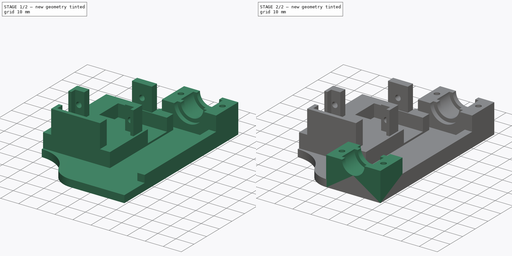
[diagram: build sequence overview — one tinted view per stage of 2, left to right]
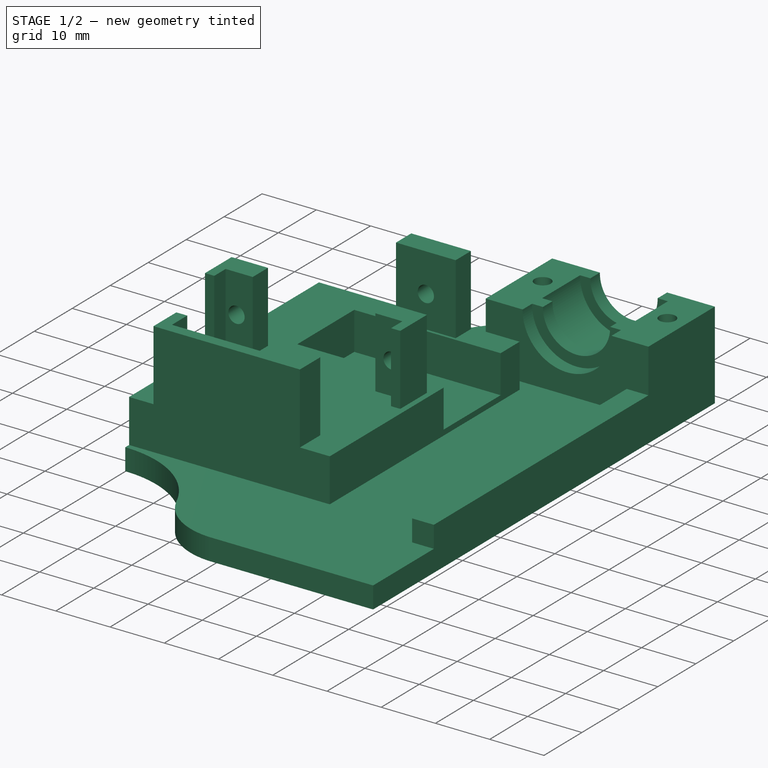
[diagram: stage 1 of 2 — iso view after this stage's code; geometry added in this stage tinted green]
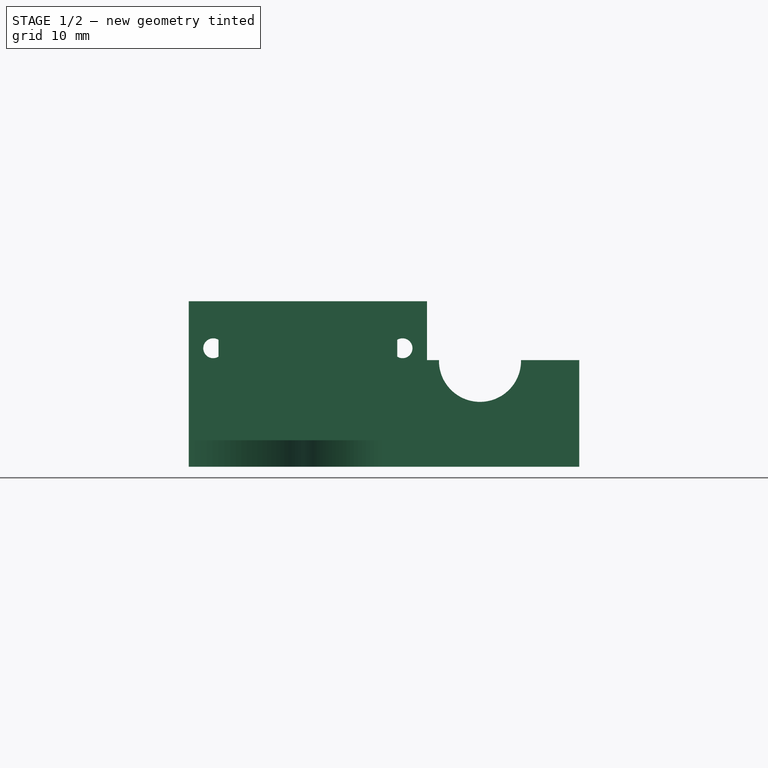
[diagram: stage 1 of 2 — front view after this stage's code; geometry added in this stage tinted green]
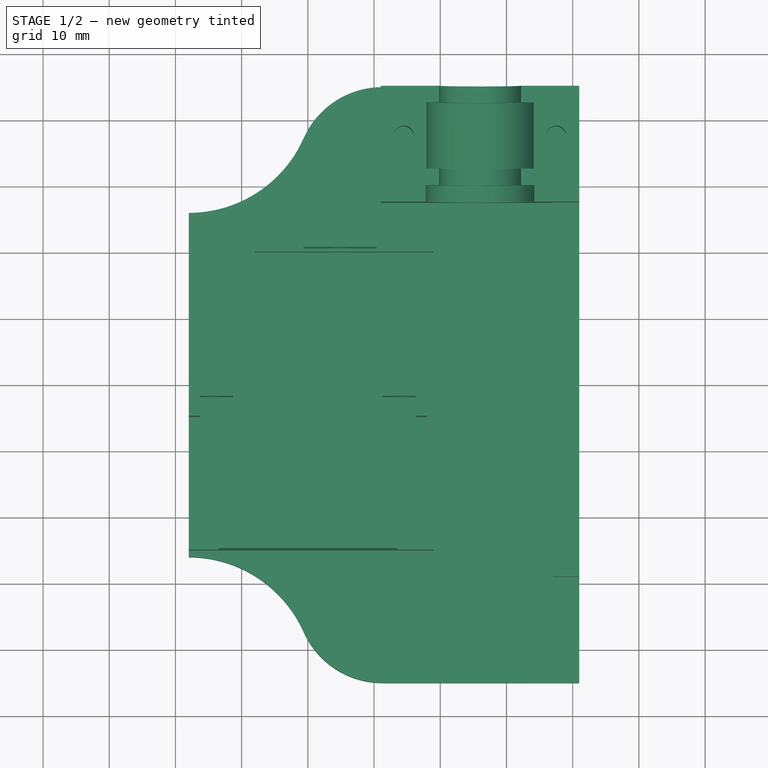
[diagram: stage 1 of 2 — top view after this stage's code; geometry added in this stage tinted green]
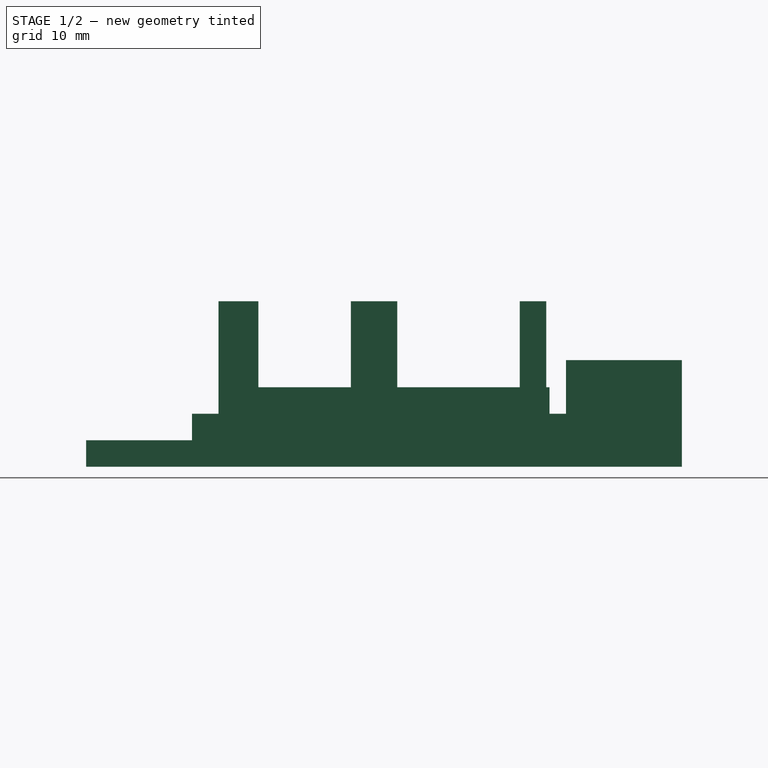
[diagram: stage 1 of 2 — right view after this stage's code; geometry added in this stage tinted green]
FCSTD DOCUMENT  (FreeCAD 0.16R6703 (Git))
Label: Full Platform v2
License: FreeArt
LicenseURL: http://artlibre.org/licence/lal
objects: Part::Feature×3, Part::Fuse×3, Sketcher::SketchObject×1, PartDesign::Pad×1
note: 9 computed .brp shape members not serialized (recipe doc carries the construction recipe); baked Part::Feature solids carry a one-line shape summary decoded from their .brp

FEATURE [Part::Feature] Pocket003001  label="Pocket004"
  Placement = pos=(26,37.5,0) rot=(0,0,1;1.5708rad)
  shape: bbox 30 x 17.5 x 12.1 mm, 30 faces (baked)
FEATURE [Part::Feature] Pocket003002  label="Pocket005"
  Placement = pos=(26,-37.5,0) rot=(0,0,-1;1.5708rad)
  shape: bbox 30 x 17.5 x 12.1 mm, 30 faces (baked)
FEATURE [Part::Feature] Fillet002
  shape: bbox 59 x 90 x 25 mm, 47 faces (baked)
FEATURE [Sketcher::SketchObject] Sketch
  Support = -> Fillet002 [Face1]
  sketch-geometry (4):
    g0: LineSegment StartX=37 StartY=29 StartZ=0 EndX=41 EndY=29 EndZ=0
    g1: LineSegment StartX=41 StartY=29 StartZ=0 EndX=41 EndY=-29 EndZ=0
    g2: LineSegment StartX=41 StartY=-29 StartZ=0 EndX=37 EndY=-29 EndZ=0
    g3: LineSegment StartX=37 StartY=-29 StartZ=0 EndX=37 EndY=29 EndZ=0
  constraints (13):
    c: Coincident(g0,g1)
    c: Coincident(g1,g2)
    c: Coincident(g2,g3)
    c: Coincident(g3,g0)
    c: Horizontal(g0)
    c: Horizontal(g2)
    c: Vertical(g1)
    c: Vertical(g3)
    c: Equal(g0,g2)
    c: DistanceX(g0,g0) = 4
    c: Symmetric(g0,g1,g-1)
    c: DistanceX(g-2,g1) = 41
    c: DistanceY(g1,g1) = 58
FEATURE [PartDesign::Pad] Pad
  Length = 4
  Length2 = 100
  Sketch = -> Sketch
  Type = 0
FEATURE [Part::Fuse] Fusion001
  Base = -> Pocket003001
  Tool = -> Pad
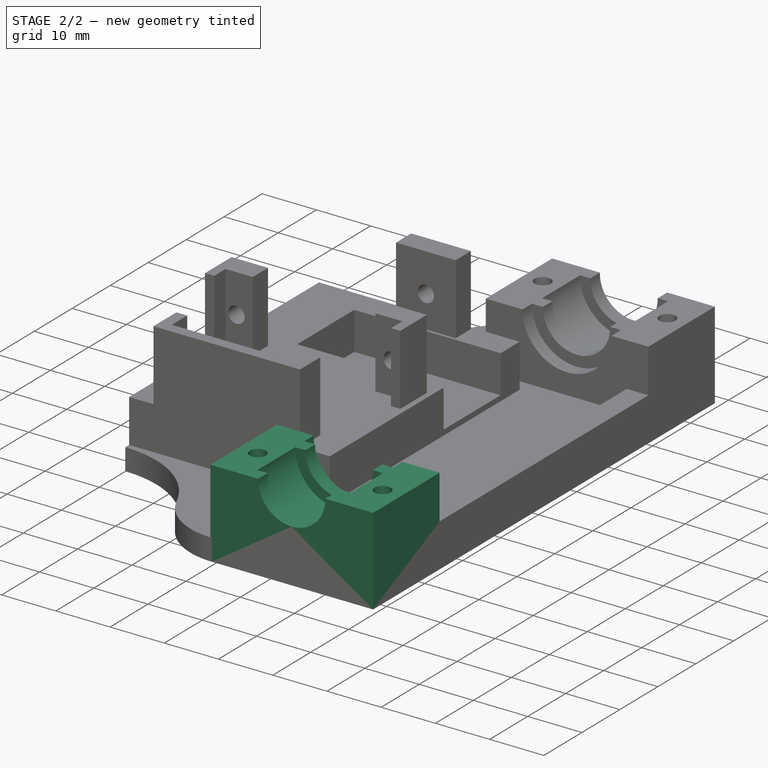
[diagram: stage 2 of 2 — iso view after this stage's code; geometry added in this stage tinted green]
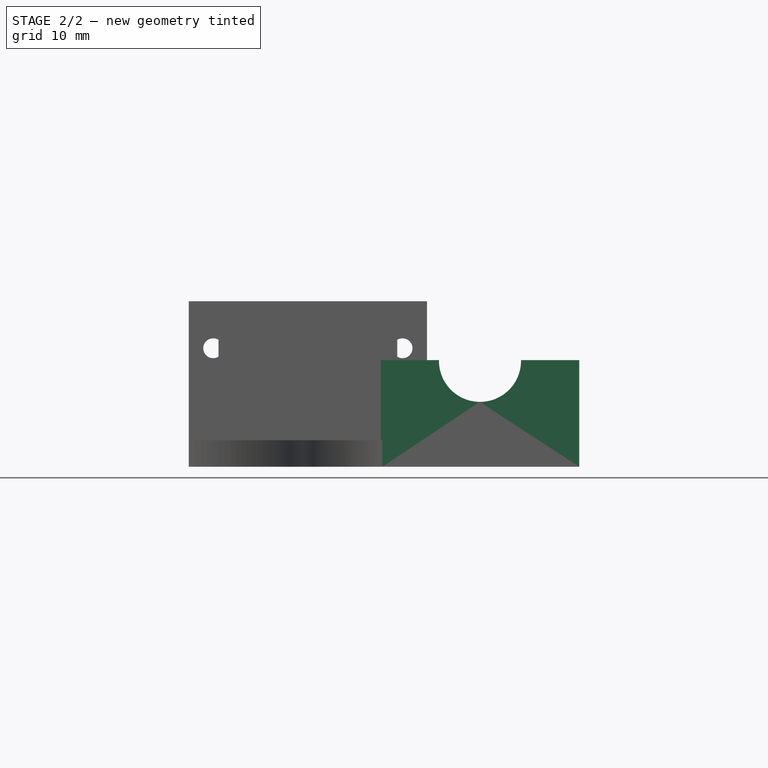
[diagram: stage 2 of 2 — front view after this stage's code; geometry added in this stage tinted green]
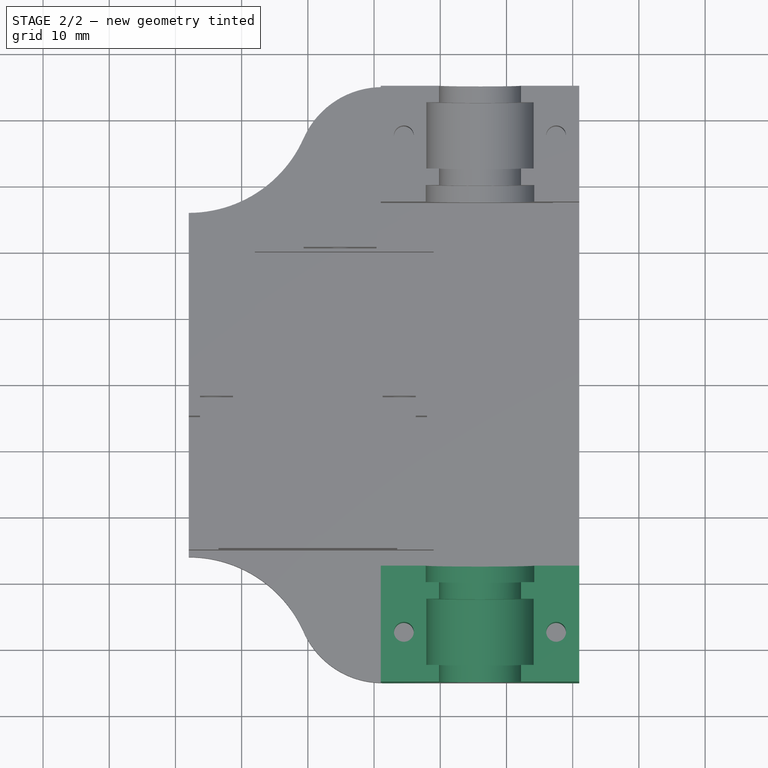
[diagram: stage 2 of 2 — top view after this stage's code; geometry added in this stage tinted green]
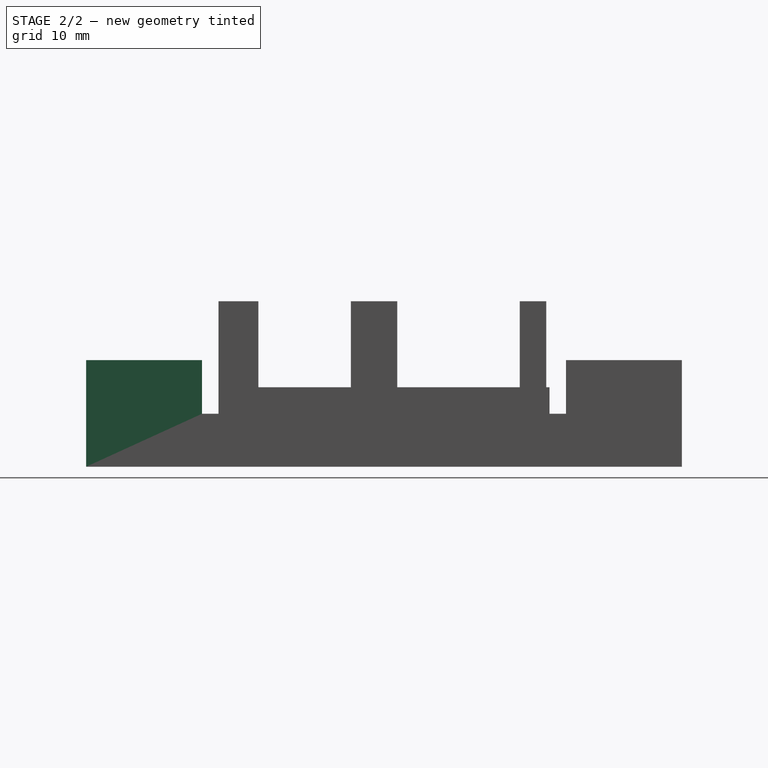
[diagram: stage 2 of 2 — right view after this stage's code; geometry added in this stage tinted green]
FEATURE [Part::Fuse] Fusion
  Base = -> Pocket003002
  Tool = -> Fillet002
FEATURE [Part::Fuse] Fusion002
  Base = -> Fusion
  Tool = -> Fusion001
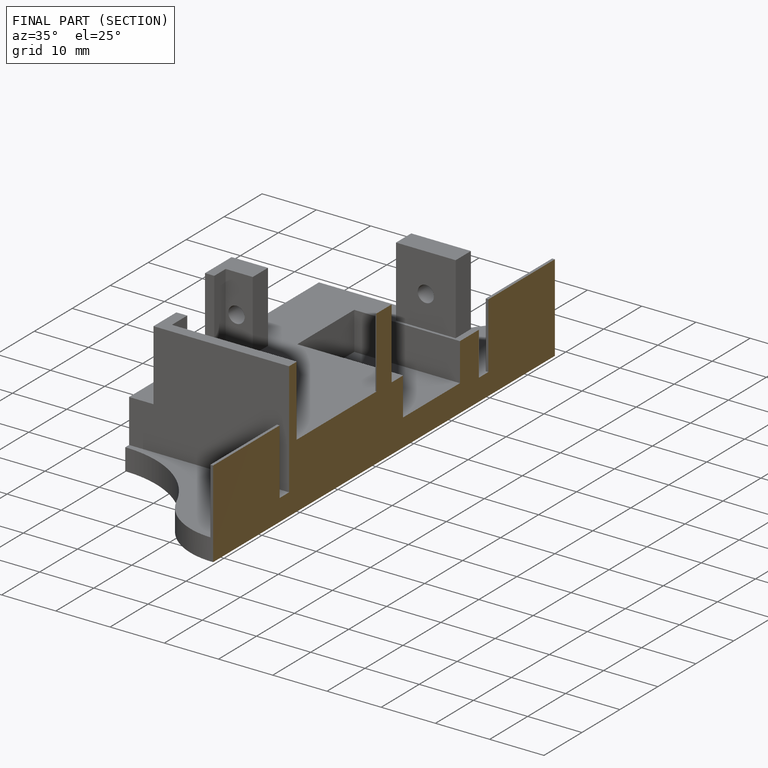
[diagram: finished part — half-section view (interior)]
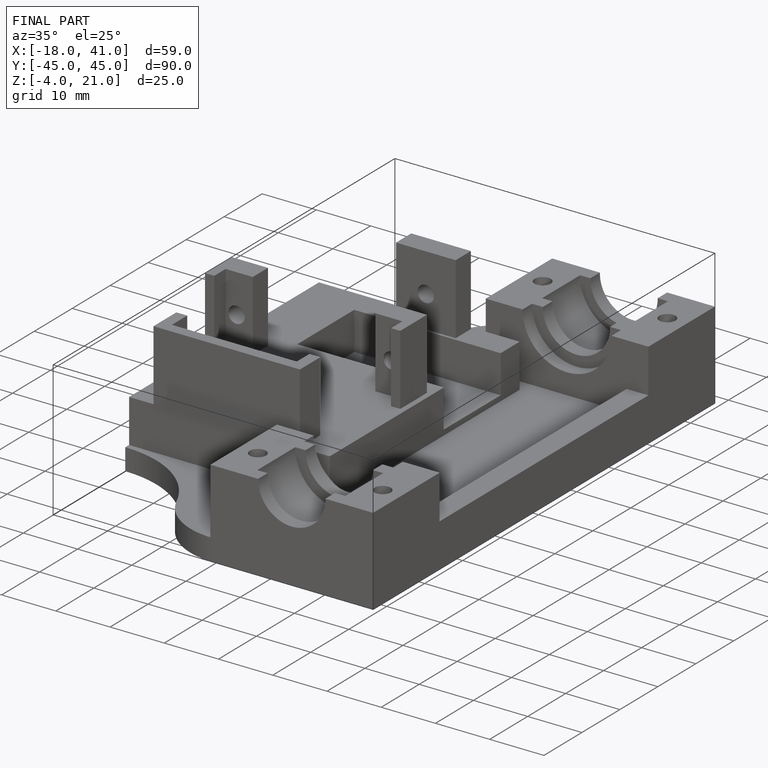
[diagram: finished part — iso view with bounding-box wireframe]
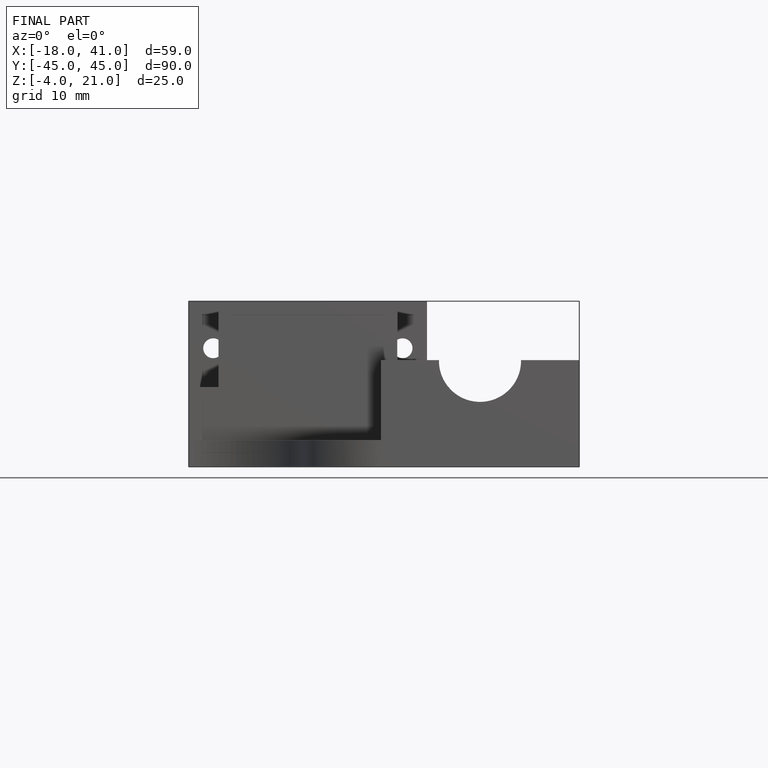
[diagram: finished part — front view with bounding-box wireframe]
